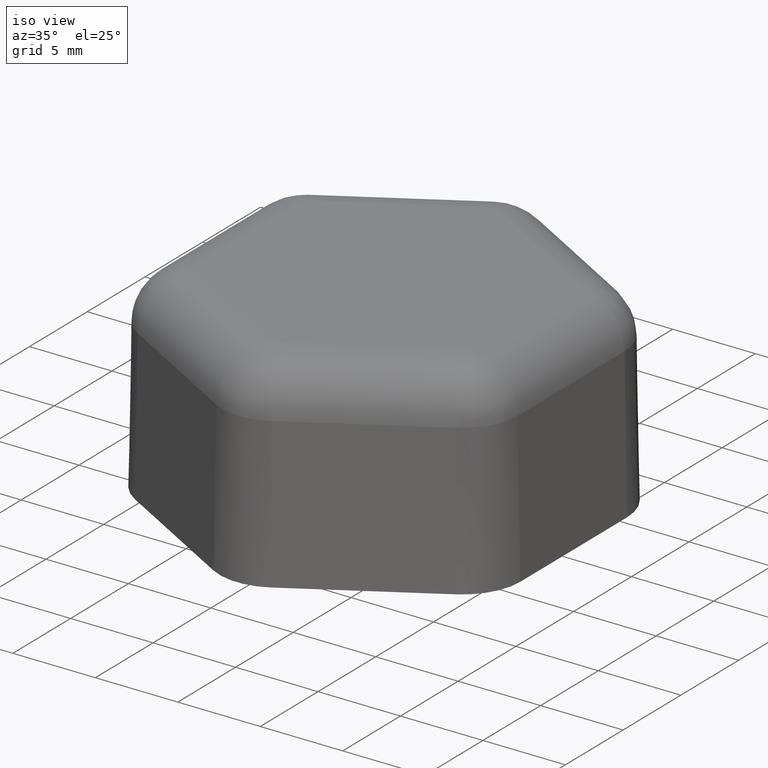
[diagram: clean part render]
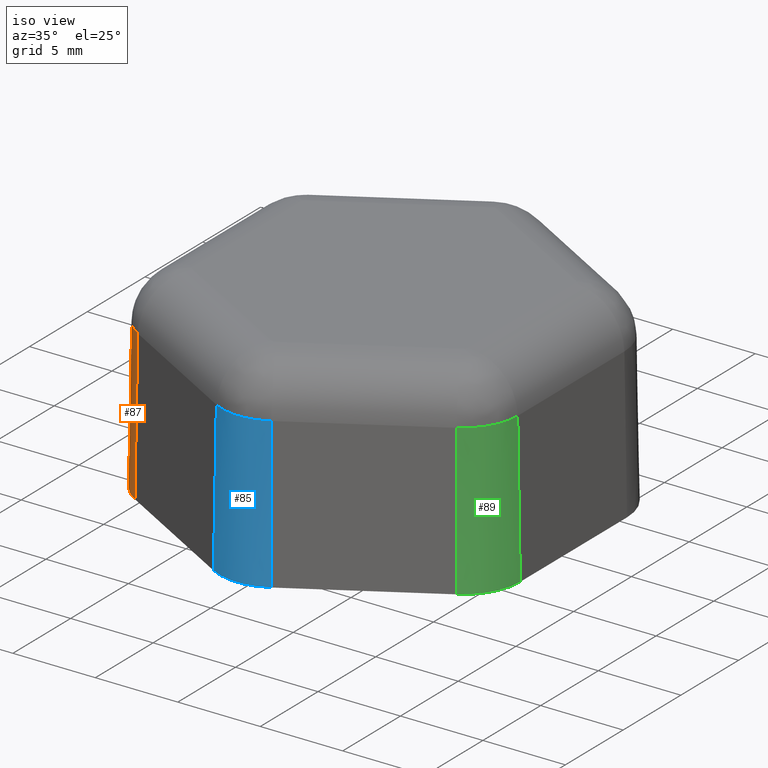
[diagram: same view with three faces highlighted in distinct colors, each labeled with its STEP entity id]
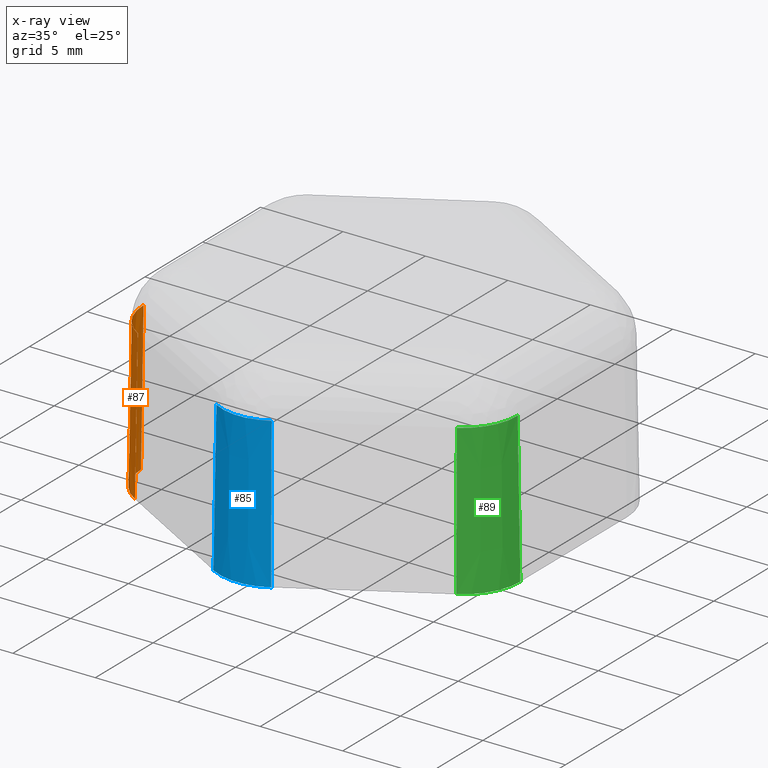
[diagram: x-ray of the same camera — body ghosted, the three highlighted faces saturated]
A machine part, iso view with three faces highlighted in distinct colors.
The next image is the same camera in x-ray (body ghosted, the three faces saturated) — at least one of them is partly hidden behind the body in this view.
Their STEP definitions:

[orange] entity #87 — the highlighted conical surface has half-angle 1 deg.
#87 = ADVANCED_FACE( '', ( #140 ), #141, .T. );
#140 = FACE_OUTER_BOUND( '', #263, .T. );
#141 = CONICAL_SURFACE( '', #264, 3.50000000000000, 0.0174532925199433 );
#263 = EDGE_LOOP( '', ( #511, #512, #513, #514 ) );
#264 = AXIS2_PLACEMENT_3D( '', #515, #516, #517 );
#511 = ORIENTED_EDGE( '', *, *, #756, .F. );
#512 = ORIENTED_EDGE( '', *, *, #757, .T. );
#513 = ORIENTED_EDGE( '', *, *, #754, .T. );
#514 = ORIENTED_EDGE( '', *, *, #726, .F. );
#515 = CARTESIAN_POINT( '', ( -8.00000000000000, -4.61880215351700, 7.55038392918905E-016 ) );
#516 = DIRECTION( '', ( 1.22460635382238E-016, 0.000000000000000, -1.00000000000000 ) );
#517 = DIRECTION( '', ( 1.00000000000000, 0.000000000000000, 1.22460635382238E-016 ) );
#726 = EDGE_CURVE( '', #848, #850, #851, .T. );
#754 = EDGE_CURVE( '', #898, #850, #899, .T. );
#756 = EDGE_CURVE( '', #901, #848, #902, .T. );
#757 = EDGE_CURVE( '', #901, #898, #903, .T. );
#848 = VERTEX_POINT( '', #1020 );
#850 = VERTEX_POINT( '', #1023 );
#851 = CIRCLE( '', #1024, 3.50000000000000 );
#898 = VERTEX_POINT( '', #1083 );
#899 = LINE( '', #1084, #1085 );
#901 = VERTEX_POINT( '', #1088 );
#902 = LINE( '', #1089, #1090 );
#903 = CIRCLE( '', #1091, 3.34199051698349 );
#1020 = CARTESIAN_POINT( '', ( -9.75000000000000, -7.64989106676253, -1.19399119497682E-015 ) );
#1023 = CARTESIAN_POINT( '', ( -11.5000000000000, -4.61880215351700, -1.40829730689573E-015 ) );
#1024 = AXIS2_PLACEMENT_3D( '', #1214, #1215, #1216 );
#1083 = CARTESIAN_POINT( '', ( -11.3419905169835, -4.61880215351700, 9.05235721931185 ) );
#1084 = CARTESIAN_POINT( '', ( -11.5000000000000, -4.61880215351700, 3.18858547052372E-016 ) );
#1085 = VECTOR( '', #1274, 1000.00000000000 );
#1088 = CARTESIAN_POINT( '', ( -9.67099525849175, -7.51305084043139, 9.05235721931185 ) );
#1089 = CARTESIAN_POINT( '', ( -9.75000000000000, -7.64989106676253, 4.65940527489308E-016 ) );
#1090 = VECTOR( '', #1276, 1000.00000000000 );
#1091 = AXIS2_PLACEMENT_3D( '', #1277, #1278, #1279 );
#1214 = CARTESIAN_POINT( '', ( -8.00000000000000, -4.61880215351700, -9.79685083057902E-016 ) );
#1215 = DIRECTION( '', ( 1.22460635382238E-016, 0.000000000000000, -1.00000000000000 ) );
#1216 = DIRECTION( '', ( -0.500000000000000, -0.866025403784439, -6.12303176911189E-017 ) );
#1274 = DIRECTION( '', ( -0.0174524064372834, -8.65002833115555E-018, -0.999847695156391 ) );
#1276 = DIRECTION( '', ( -0.00872620321864163, -0.0151142273318586, -0.999847695156391 ) );
#1277 = CARTESIAN_POINT( '', ( -8.00000000000001, -4.61880215351700, 9.05235721931185 ) );
#1278 = DIRECTION( '', ( 1.22460635382238E-016, 0.000000000000000, -1.00000000000000 ) );
#1279 = DIRECTION( '', ( -1.00000000000000, 0.000000000000000, -1.22460635382238E-016 ) );

[blue] entity #85 — the highlighted conical surface has half-angle 1 deg.
#85 = ADVANCED_FACE( '', ( #136 ), #137, .T. );
#136 = FACE_OUTER_BOUND( '', #259, .T. );
#137 = CONICAL_SURFACE( '', #260, 3.50000000000000, 0.0174532925199433 );
#259 = EDGE_LOOP( '', ( #497, #498, #499, #500 ) );
#260 = AXIS2_PLACEMENT_3D( '', #501, #502, #503 );
#497 = ORIENTED_EDGE( '', *, *, #751, .F. );
#498 = ORIENTED_EDGE( '', *, *, #752, .T. );
#499 = ORIENTED_EDGE( '', *, *, #753, .T. );
#500 = ORIENTED_EDGE( '', *, *, #724, .F. );
#501 = CARTESIAN_POINT( '', ( -6.93889390390723E-015, -9.23760430703400, 1.73472347597681E-015 ) );
#502 = DIRECTION( '', ( 1.22460635382238E-016, 0.000000000000000, -1.00000000000000 ) );
#503 = DIRECTION( '', ( 1.00000000000000, 0.000000000000000, 1.22460635382238E-016 ) );
#724 = EDGE_CURVE( '', #844, #846, #847, .T. );
#751 = EDGE_CURVE( '', #890, #844, #894, .T. );
#752 = EDGE_CURVE( '', #890, #895, #896, .T. );
#753 = EDGE_CURVE( '', #895, #846, #897, .T. );
#844 = VERTEX_POINT( '', #1015 );
#846 = VERTEX_POINT( '', #1018 );
#847 = CIRCLE( '', #1019, 3.50000000000000 );
#890 = VERTEX_POINT( '', #1071 );
#894 = LINE( '', #1077, #1078 );
#895 = VERTEX_POINT( '', #1079 );
#896 = CIRCLE( '', #1080, 3.34199051698348 );
#897 = LINE( '', #1081, #1082 );
#1015 = CARTESIAN_POINT( '', ( 1.74999999999999, -12.2686932202795, 2.14306111918915E-016 ) );
#1018 = CARTESIAN_POINT( '', ( -1.75000000000000, -12.2686932202795, -2.14306111918916E-016 ) );
#1019 = AXIS2_PLACEMENT_3D( '', #1210, #1211, #1212 );
#1071 = CARTESIAN_POINT( '', ( 1.67099525849174, -12.1318529939484, 9.05235721931186 ) );
#1077 = CARTESIAN_POINT( '', ( 1.74999999999999, -12.2686932202795, 1.89474181252382E-015 ) );
#1078 = VECTOR( '', #1269, 1000.00000000000 );
#1079 = CARTESIAN_POINT( '', ( -1.67099525849175, -12.1318529939484, 9.05235721931185 ) );
#1080 = AXIS2_PLACEMENT_3D( '', #1270, #1271, #1272 );
#1081 = CARTESIAN_POINT( '', ( -1.75000000000000, -12.2686932202795, 1.54312023014399E-015 ) );
#1082 = VECTOR( '', #1273, 1000.00000000000 );
#1210 = CARTESIAN_POINT( '', ( -6.93889390390723E-015, -9.23760430703400, -8.49741356322415E-031 ) );
#1211 = DIRECTION( '', ( 1.22460635382238E-016, 0.000000000000000, -1.00000000000000 ) );
#1212 = DIRECTION( '', ( 0.500000000000001, -0.866025403784438, 6.12303176911189E-017 ) );
#1269 = DIRECTION( '', ( 0.00872620321864189, -0.0151142273318586, -0.999847695156391 ) );
#1270 = CARTESIAN_POINT( '', ( -8.04745132069115E-015, -9.23760430703400, 9.05235721931186 ) );
#1271 = DIRECTION( '', ( 1.22460635382238E-016, 0.000000000000000, -1.00000000000000 ) );
#1272 = DIRECTION( '', ( -1.00000000000000, 0.000000000000000, -1.22460635382238E-016 ) );
#1273 = DIRECTION( '', ( -0.00872620321864162, -0.0151142273318586, -0.999847695156391 ) );

[green] entity #89 — the highlighted conical surface has half-angle 1 deg.
#89 = ADVANCED_FACE( '', ( #144 ), #145, .T. );
#144 = FACE_OUTER_BOUND( '', #267, .T. );
#145 = CONICAL_SURFACE( '', #268, 3.50000000000000, 0.0174532925199433 );
#267 = EDGE_LOOP( '', ( #525, #526, #527, #528 ) );
#268 = AXIS2_PLACEMENT_3D( '', #529, #530, #531 );
#525 = ORIENTED_EDGE( '', *, *, #759, .F. );
#526 = ORIENTED_EDGE( '', *, *, #746, .T. );
#527 = ORIENTED_EDGE( '', *, *, #750, .T. );
#528 = ORIENTED_EDGE( '', *, *, #722, .F. );
#529 = CARTESIAN_POINT( '', ( 7.99999999999999, -4.61880215351699, 2.71440855903471E-015 ) );
#530 = DIRECTION( '', ( 1.22460635382238E-016, 0.000000000000000, -1.00000000000000 ) );
#531 = DIRECTION( '', ( 1.00000000000000, 0.000000000000000, 1.22460635382238E-016 ) );
#722 = EDGE_CURVE( '', #840, #842, #843, .T. );
#746 = EDGE_CURVE( '', #887, #885, #888, .T. );
#750 = EDGE_CURVE( '', #885, #842, #893, .T. );
#759 = EDGE_CURVE( '', #887, #840, #905, .T. );
#840 = VERTEX_POINT( '', #1010 );
#842 = VERTEX_POINT( '', #1013 );
#843 = CIRCLE( '', #1014, 3.50000000000000 );
#885 = VERTEX_POINT( '', #1066 );
#887 = VERTEX_POINT( '', #1068 );
#888 = CIRCLE( '', #1069, 3.34199051698349 );
#893 = LINE( '', #1075, #1076 );
#905 = LINE( '', #1094, #1095 );
#1010 = CARTESIAN_POINT( '', ( 11.5000000000000, -4.61880215351699, 1.40829730689573E-015 ) );
#1013 = CARTESIAN_POINT( '', ( 9.74999999999999, -7.64989106676252, 1.19399119497682E-015 ) );
#1014 = AXIS2_PLACEMENT_3D( '', #1206, #1207, #1208 );
#1066 = CARTESIAN_POINT( '', ( 9.67099525849174, -7.51305084043138, 9.05235721931185 ) );
#1068 = CARTESIAN_POINT( '', ( 11.3419905169835, -4.61880215351699, 9.05235721931186 ) );
#1069 = AXIS2_PLACEMENT_3D( '', #1258, #1259, #1260 );
#1075 = CARTESIAN_POINT( '', ( 9.74999999999999, -7.64989106676252, 2.98168802515453E-015 ) );
#1076 = VECTOR( '', #1268, 1000.00000000000 );
#1094 = CARTESIAN_POINT( '', ( 11.5000000000000, -4.61880215351699, 3.16796907955405E-015 ) );
#1095 = VECTOR( '', #1281, 1000.00000000000 );
#1206 = CARTESIAN_POINT( '', ( 7.99999999999999, -4.61880215351699, 9.79685083057901E-016 ) );
#1207 = DIRECTION( '', ( 1.22460635382238E-016, 0.000000000000000, -1.00000000000000 ) );
#1208 = DIRECTION( '', ( 1.00000000000000, 0.000000000000000, 1.22460635382238E-016 ) );
#1258 = CARTESIAN_POINT( '', ( 7.99999999999999, -4.61880215351699, 9.05235721931186 ) );
#1259 = DIRECTION( '', ( 1.22460635382238E-016, 0.000000000000000, -1.00000000000000 ) );
#1260 = DIRECTION( '', ( -1.00000000000000, 0.000000000000000, -1.22460635382238E-016 ) );
#1268 = DIRECTION( '', ( 0.00872620321864189, -0.0151142273318586, -0.999847695156391 ) );
#1281 = DIRECTION( '', ( 0.0174524064372836, -3.87521269235769E-018, -0.999847695156391 ) );